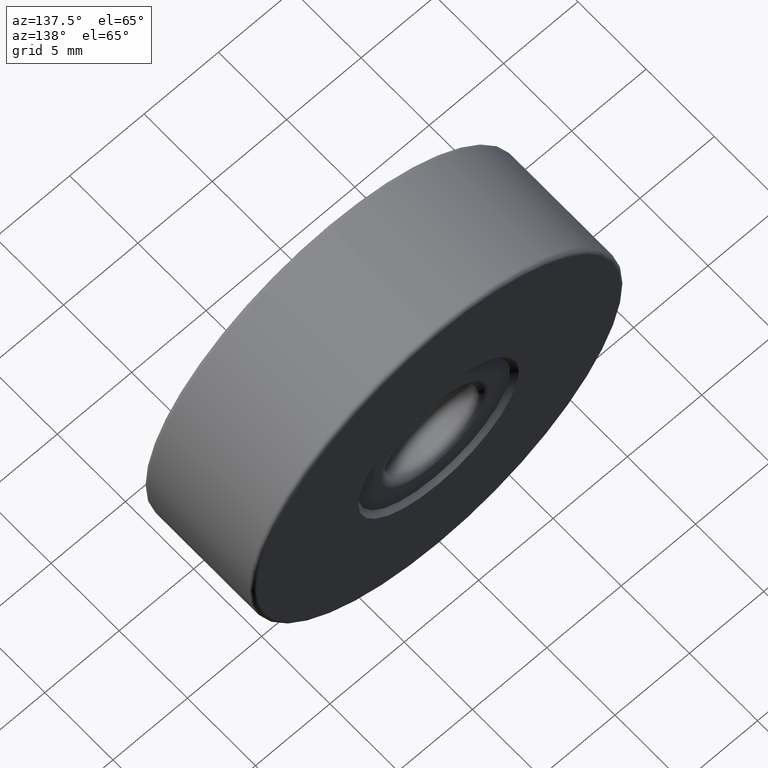
[diagram: clean part render]
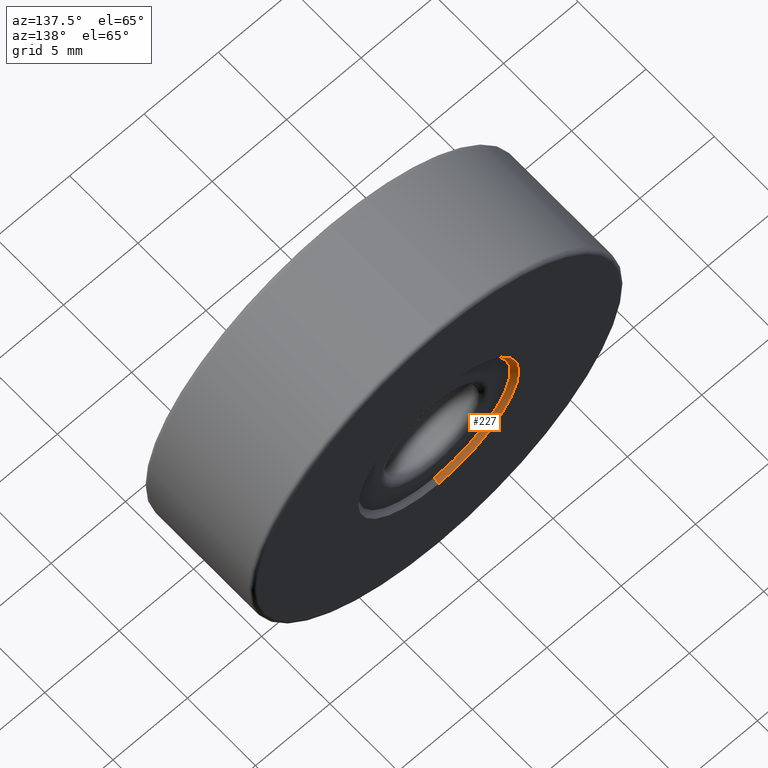
[diagram: same view with one face highlighted and labeled with its STEP entity id]
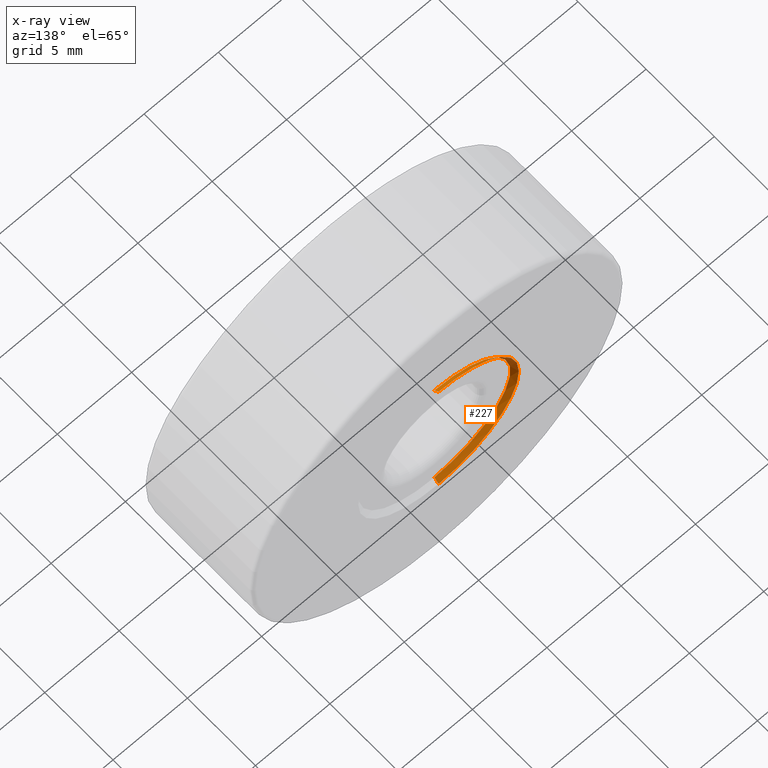
[diagram: x-ray of the same camera — body ghosted, the highlighted face saturated]
A machine part, auxiliary view. The second image highlights one B-rep face of the part: STEP entity #227.
The next image is the same camera in x-ray: the body ghosted, the highlighted face saturated — about 0% of this face is hidden behind the body in this view.
In plain terms, the highlighted conical surface has half-angle 45 deg.
Its self-contained STEP definition (entity closure, byte-faithful):
#1 = EDGE_CURVE ( 'NONE', #123, #253, #270, .T. ) ;
#3 = CARTESIAN_POINT ( 'NONE',  ( -4.682026255059963837, 2.405024023001725020, 19.60000000000000497 ) ) ;
#5 = DIRECTION ( 'NONE',  ( 0.0000000000000000000, 0.0000000000000000000, 1.000000000000000000 ) ) ;
#10 = VERTEX_POINT ( 'NONE', #476 ) ;
#13 = AXIS2_PLACEMENT_3D ( 'NONE', #581, #534, #479 ) ;
#33 = ORIENTED_EDGE ( 'NONE', *, *, #58, .F. ) ;
#43 = AXIS2_PLACEMENT_3D ( 'NONE', #195, #336, #290 ) ;
#54 = AXIS2_PLACEMENT_3D ( 'NONE', #524, #145, #5 ) ;
#58 = EDGE_CURVE ( 'NONE', #146, #123, #592, .T. ) ;
#61 = ORIENTED_EDGE ( 'NONE', *, *, #267, .F. ) ;
#76 = EDGE_CURVE ( 'NONE', #10, #253, #271, .T. ) ;
#96 = FACE_OUTER_BOUND ( 'NONE', #498, .T. ) ;
#123 = VERTEX_POINT ( 'NONE', #371 ) ;
#130 = CARTESIAN_POINT ( 'NONE',  ( -4.682026255059964726, 2.105024023001725197, 30.10000000000000142 ) ) ;
#145 = DIRECTION ( 'NONE',  ( 0.0000000000000000000, 1.000000000000000000, 0.0000000000000000000 ) ) ;
#146 = VERTEX_POINT ( 'NONE', #130 ) ;
#162 = CARTESIAN_POINT ( 'NONE',  ( -4.682026255059964726, 2.105024023001731859, 30.10000000000000142 ) ) ;
#195 = CARTESIAN_POINT ( 'NONE',  ( -4.682026255059964726, 2.105024023001725197, 25.00000000000000000 ) ) ;
#227 = ADVANCED_FACE ( 'NONE', ( #96 ), #521, .F. ) ;
#253 = VERTEX_POINT ( 'NONE', #3 ) ;
#267 = EDGE_CURVE ( 'NONE', #10, #146, #338, .T. ) ;
#270 = CIRCLE ( 'NONE', #13, 5.399999999999995026 ) ;
#271 = LINE ( 'NONE', #514, #389 ) ;
#290 = DIRECTION ( 'NONE',  ( 0.0000000000000000000, 0.0000000000000000000, 1.000000000000000000 ) ) ;
#336 = DIRECTION ( 'NONE',  ( 0.0000000000000000000, 1.000000000000000000, 0.0000000000000000000 ) ) ;
#338 = CIRCLE ( 'NONE', #43, 5.100000000000000533 ) ;
#350 = DIRECTION ( 'NONE',  ( 0.0000000000000000000, 0.7071067811865444641, 0.7071067811865505703 ) ) ;
#360 = VECTOR ( 'NONE', #350, 1000.000000000000000 ) ;
#371 = CARTESIAN_POINT ( 'NONE',  ( -4.682026255059964726, 2.405024023001725020, 30.39999999999999503 ) ) ;
#389 = VECTOR ( 'NONE', #602, 1000.000000000000000 ) ;
#476 = CARTESIAN_POINT ( 'NONE',  ( -4.682026255059963837, 2.105024023001725197, 19.90000000000000213 ) ) ;
#479 = DIRECTION ( 'NONE',  ( 0.0000000000000000000, 0.0000000000000000000, 1.000000000000000000 ) ) ;
#498 = EDGE_LOOP ( 'NONE', ( #61, #533, #613, #33 ) ) ;
#514 = CARTESIAN_POINT ( 'NONE',  ( -4.682026255059963837, 2.105024023001731859, 19.90000000000000213 ) ) ;
#521 = CONICAL_SURFACE ( 'NONE', #54, 5.100000000000000533, 0.7853981633974526089 ) ;
#524 = CARTESIAN_POINT ( 'NONE',  ( -4.682026255059964726, 2.105024023001731859, 25.00000000000000000 ) ) ;
#533 = ORIENTED_EDGE ( 'NONE', *, *, #76, .T. ) ;
#534 = DIRECTION ( 'NONE',  ( -0.0000000000000000000, -1.000000000000000000, -0.0000000000000000000 ) ) ;
#581 = CARTESIAN_POINT ( 'NONE',  ( -4.682026255059964726, 2.405024023001725020, 25.00000000000000000 ) ) ;
#592 = LINE ( 'NONE', #162, #360 ) ;
#602 = DIRECTION ( 'NONE',  ( 8.659560562354969836E-17, 0.7071067811865444641, -0.7071067811865505703 ) ) ;
#613 = ORIENTED_EDGE ( 'NONE', *, *, #1, .F. ) ;